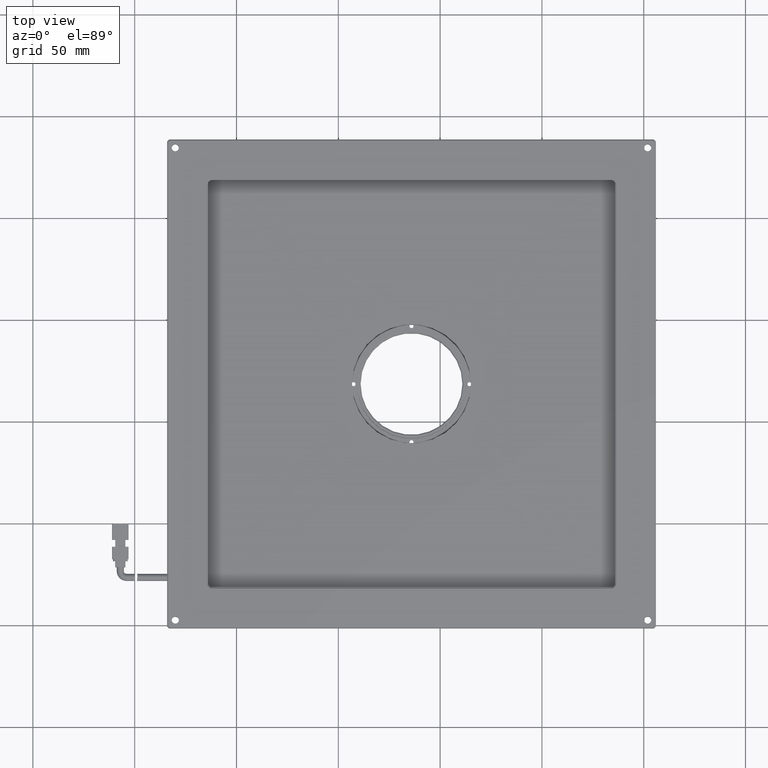
[diagram: clean part render]
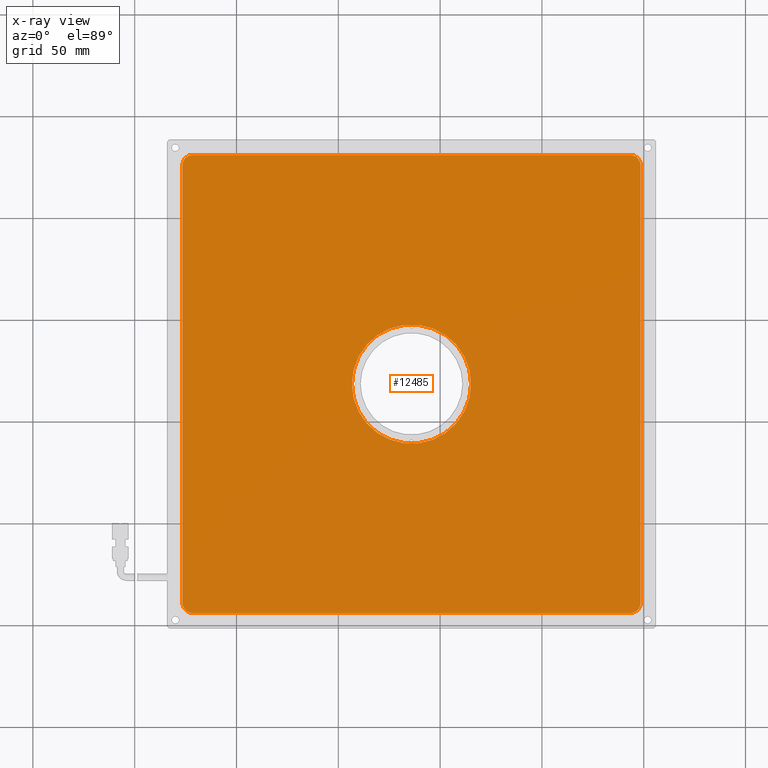
[diagram: x-ray — body ghosted, one internal face saturated and labeled with its STEP entity id]
A machine part, top view, then the same camera in x-ray: the body is ghosted and one INTERNAL B-rep face — a face not visible from any outside direction — is saturated and labeled: STEP entity #12485.
In plain terms, the highlighted planar face has unit normal (-0, 0, 1).
Its self-contained STEP definition (entity closure, byte-faithful):
#1138 = DIRECTION ( 'NONE',  ( 1.000000000000000000, 0.0000000000000000000, 0.0000000000000000000 ) ) ;
#1404 = DIRECTION ( 'NONE',  ( 0.0000000000000000000, -0.0000000000000000000, 1.000000000000000000 ) ) ;
#1546 = ORIENTED_EDGE ( 'NONE', *, *, #4213, .F. ) ;
#1970 = CARTESIAN_POINT ( 'NONE',  ( 15.19710554512084300, 18.54377205333212000, -2.999999999999995600 ) ) ;
#3259 = AXIS2_PLACEMENT_3D ( 'NONE', #15106, #16868, #6738 ) ;
#3263 = EDGE_CURVE ( 'NONE', #21377, #14893, #10199, .T. ) ;
#3350 = CARTESIAN_POINT ( 'NONE',  ( 93.44710554512087700, -93.95622794666790900, -2.999999999999995600 ) ) ;
#3602 = CIRCLE ( 'NONE', #18784, 5.000000000000004400 ) ;
#3625 = DIRECTION ( 'NONE',  ( -0.0000000000000000000, -1.000000000000000000, 0.0000000000000000000 ) ) ;
#3637 = VECTOR ( 'NONE', #17387, 1000.000000000000000 ) ;
#4213 = EDGE_CURVE ( 'NONE', #9882, #16713, #3602, .T. ) ;
#4659 = CARTESIAN_POINT ( 'NONE',  ( 93.44710554512082000, 131.0437720533321100, -2.999999999999995600 ) ) ;
#5650 = AXIS2_PLACEMENT_3D ( 'NONE', #20405, #6594, #8327 ) ;
#6035 = VECTOR ( 'NONE', #3625, 1000.000000000000000 ) ;
#6074 = EDGE_CURVE ( 'NONE', #11374, #15429, #14027, .T. ) ;
#6080 = CARTESIAN_POINT ( 'NONE',  ( -121.5528944548791100, -93.95622794666789400, -2.999999999999995600 ) ) ;
#6124 = CIRCLE ( 'NONE', #21335, 29.25000000000000000 ) ;
#6355 = VERTEX_POINT ( 'NONE', #6080 ) ;
#6553 = FACE_OUTER_BOUND ( 'NONE', #12961, .T. ) ;
#6594 = DIRECTION ( 'NONE',  ( -0.0000000000000000000, -0.0000000000000000000, 1.000000000000000000 ) ) ;
#6639 = DIRECTION ( 'NONE',  ( -0.0000000000000000000, -0.0000000000000000000, -1.000000000000000000 ) ) ;
#6738 = DIRECTION ( 'NONE',  ( -1.000000000000000000, 0.0000000000000000000, 0.0000000000000000000 ) ) ;
#6903 = EDGE_CURVE ( 'NONE', #16713, #11374, #18559, .T. ) ;
#7035 = EDGE_CURVE ( 'NONE', #11728, #6355, #15653, .T. ) ;
#7132 = DIRECTION ( 'NONE',  ( 1.000000000000000000, 0.0000000000000000000, 0.0000000000000000000 ) ) ;
#7238 = AXIS2_PLACEMENT_3D ( 'NONE', #19975, #1404, #8119 ) ;
#7356 = LINE ( 'NONE', #17279, #17419 ) ;
#7462 = CARTESIAN_POINT ( 'NONE',  ( 98.44710554512089100, -93.95622794666789400, -2.999999999999995600 ) ) ;
#7629 = EDGE_CURVE ( 'NONE', #15429, #11728, #15588, .T. ) ;
#7763 = EDGE_CURVE ( 'NONE', #14893, #9882, #17134, .T. ) ;
#8119 = DIRECTION ( 'NONE',  ( -1.000000000000000000, 0.0000000000000000000, 0.0000000000000000000 ) ) ;
#8327 = DIRECTION ( 'NONE',  ( -1.000000000000000000, 0.0000000000000000000, 0.0000000000000000000 ) ) ;
#8602 = ORIENTED_EDGE ( 'NONE', *, *, #7035, .F. ) ;
#8741 = CARTESIAN_POINT ( 'NONE',  ( -126.5528944548791700, -93.95622794666789400, -2.999999999999995600 ) ) ;
#9149 = ORIENTED_EDGE ( 'NONE', *, *, #12610, .F. ) ;
#9607 = ORIENTED_EDGE ( 'NONE', *, *, #6903, .F. ) ;
#9841 = CARTESIAN_POINT ( 'NONE',  ( -126.5528944548791400, -88.95622794666789400, -2.999999999999995600 ) ) ;
#9882 = VERTEX_POINT ( 'NONE', #16079 ) ;
#9933 = ORIENTED_EDGE ( 'NONE', *, *, #11586, .F. ) ;
#10199 = CIRCLE ( 'NONE', #3259, 5.000000000000004400 ) ;
#10415 = EDGE_LOOP ( 'NONE', ( #9933, #9149 ) ) ;
#10781 = CARTESIAN_POINT ( 'NONE',  ( 98.44710554512089100, -88.95622794666790900, -2.999999999999995600 ) ) ;
#11186 = CARTESIAN_POINT ( 'NONE',  ( -14.05289445487915900, 18.54377205333211600, -2.999999999999995600 ) ) ;
#11323 = CIRCLE ( 'NONE', #17107, 29.25000000000000000 ) ;
#11374 = VERTEX_POINT ( 'NONE', #11928 ) ;
#11586 = EDGE_CURVE ( 'NONE', #15784, #19743, #6124, .T. ) ;
#11728 = VERTEX_POINT ( 'NONE', #9841 ) ;
#11928 = CARTESIAN_POINT ( 'NONE',  ( -121.5528944548791400, 131.0437720533321100, -2.999999999999995600 ) ) ;
#11938 = VECTOR ( 'NONE', #21626, 1000.000000000000000 ) ;
#12309 = ORIENTED_EDGE ( 'NONE', *, *, #13428, .F. ) ;
#12485 = ADVANCED_FACE ( 'NONE', ( #6553, #20388 ), #16005, .F. ) ;
#12610 = EDGE_CURVE ( 'NONE', #19743, #15784, #11323, .T. ) ;
#12961 = EDGE_LOOP ( 'NONE', ( #15740, #12309, #8602, #15427, #15078, #9607, #1546, #21777 ) ) ;
#13428 = EDGE_CURVE ( 'NONE', #6355, #21377, #7356, .T. ) ;
#14027 = CIRCLE ( 'NONE', #5650, 4.999999999999990200 ) ;
#14045 = DIRECTION ( 'NONE',  ( -1.000000000000000000, 0.0000000000000000000, 0.0000000000000000000 ) ) ;
#14805 = DIRECTION ( 'NONE',  ( -0.0000000000000000000, 0.0000000000000000000, 1.000000000000000000 ) ) ;
#14853 = AXIS2_PLACEMENT_3D ( 'NONE', #18195, #14805, #1138 ) ;
#14893 = VERTEX_POINT ( 'NONE', #10781 ) ;
#15078 = ORIENTED_EDGE ( 'NONE', *, *, #6074, .F. ) ;
#15106 = CARTESIAN_POINT ( 'NONE',  ( 93.44710554512087700, -88.95622794666790900, -2.999999999999995600 ) ) ;
#15427 = ORIENTED_EDGE ( 'NONE', *, *, #7629, .F. ) ;
#15429 = VERTEX_POINT ( 'NONE', #20535 ) ;
#15588 = LINE ( 'NONE', #8741, #6035 ) ;
#15653 = CIRCLE ( 'NONE', #7238, 4.999999999999990200 ) ;
#15740 = ORIENTED_EDGE ( 'NONE', *, *, #3263, .F. ) ;
#15784 = VERTEX_POINT ( 'NONE', #21912 ) ;
#15824 = DIRECTION ( 'NONE',  ( -0.0000000000000000000, -0.0000000000000000000, 1.000000000000000000 ) ) ;
#16005 = PLANE ( 'NONE',  #14853 ) ;
#16079 = CARTESIAN_POINT ( 'NONE',  ( 98.44710554512086300, 126.0437720533321200, -2.999999999999995600 ) ) ;
#16713 = VERTEX_POINT ( 'NONE', #4659 ) ;
#16773 = CARTESIAN_POINT ( 'NONE',  ( -14.05289445487915900, 18.54377205333211600, -2.999999999999995600 ) ) ;
#16868 = DIRECTION ( 'NONE',  ( -0.0000000000000000000, -0.0000000000000000000, 1.000000000000000000 ) ) ;
#17107 = AXIS2_PLACEMENT_3D ( 'NONE', #16773, #6639, #20311 ) ;
#17134 = LINE ( 'NONE', #7462, #3637 ) ;
#17279 = CARTESIAN_POINT ( 'NONE',  ( -126.5528944548791400, -93.95622794666789400, -2.999999999999995600 ) ) ;
#17359 = CARTESIAN_POINT ( 'NONE',  ( 93.44710554512082000, 126.0437720533321200, -2.999999999999995600 ) ) ;
#17387 = DIRECTION ( 'NONE',  ( 0.0000000000000000000, 1.000000000000000000, -0.0000000000000000000 ) ) ;
#17419 = VECTOR ( 'NONE', #7132, 1000.000000000000000 ) ;
#18103 = CARTESIAN_POINT ( 'NONE',  ( -126.5528944548791400, 131.0437720533321100, -2.999999999999995600 ) ) ;
#18195 = CARTESIAN_POINT ( 'NONE',  ( -126.5528944548791400, -93.95622794666789400, -2.999999999999995600 ) ) ;
#18559 = LINE ( 'NONE', #18103, #11938 ) ;
#18784 = AXIS2_PLACEMENT_3D ( 'NONE', #17359, #15824, #14045 ) ;
#19398 = DIRECTION ( 'NONE',  ( -1.000000000000000000, 0.0000000000000000000, 0.0000000000000000000 ) ) ;
#19698 = DIRECTION ( 'NONE',  ( -0.0000000000000000000, -0.0000000000000000000, -1.000000000000000000 ) ) ;
#19743 = VERTEX_POINT ( 'NONE', #1970 ) ;
#19975 = CARTESIAN_POINT ( 'NONE',  ( -121.5528944548791100, -88.95622794666789400, -2.999999999999995600 ) ) ;
#20311 = DIRECTION ( 'NONE',  ( -1.000000000000000000, 0.0000000000000000000, 0.0000000000000000000 ) ) ;
#20388 = FACE_BOUND ( 'NONE', #10415, .T. ) ;
#20405 = CARTESIAN_POINT ( 'NONE',  ( -121.5528944548791400, 126.0437720533321200, -2.999999999999995600 ) ) ;
#20535 = CARTESIAN_POINT ( 'NONE',  ( -126.5528944548791700, 126.0437720533321200, -2.999999999999995600 ) ) ;
#21335 = AXIS2_PLACEMENT_3D ( 'NONE', #11186, #19698, #19398 ) ;
#21377 = VERTEX_POINT ( 'NONE', #3350 ) ;
#21626 = DIRECTION ( 'NONE',  ( -1.000000000000000000, -0.0000000000000000000, -0.0000000000000000000 ) ) ;
#21777 = ORIENTED_EDGE ( 'NONE', *, *, #7763, .F. ) ;
#21912 = CARTESIAN_POINT ( 'NONE',  ( -43.30289445487915900, 18.54377205333211600, -2.999999999999995600 ) ) ;